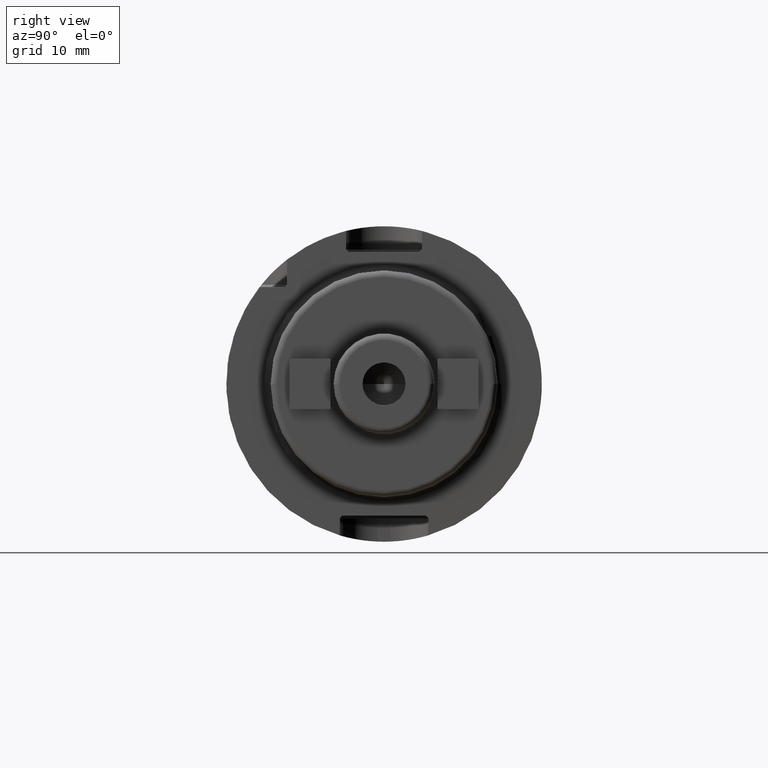
[diagram: clean part render]
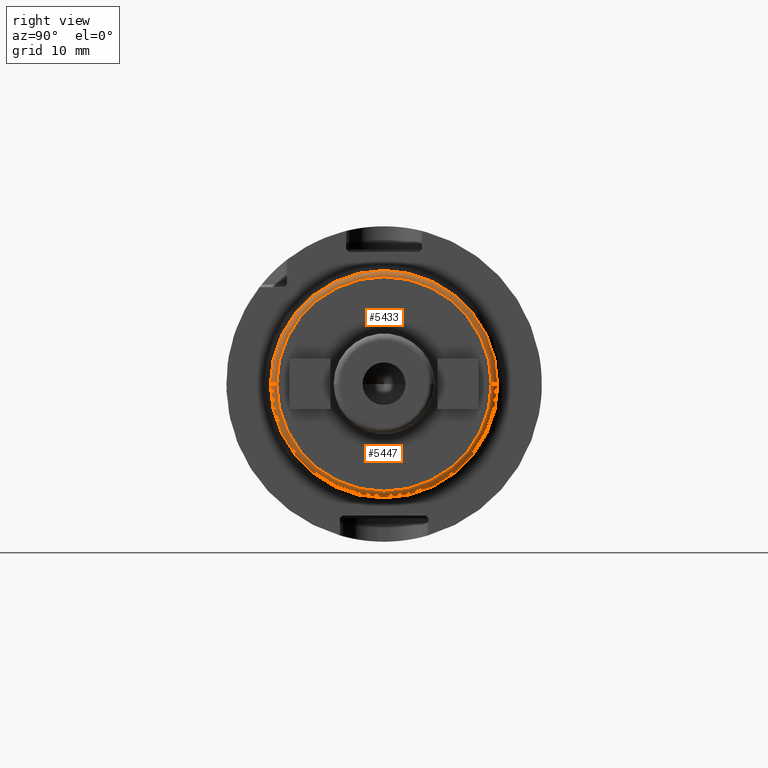
[diagram: same view with one multi-face feature highlighted, each face labeled with its STEP entity id]
A machine part, right view. The highlighted faces form ONE feature: a constant-radius fillet chain: 2 tangent blend faces with common blend radius 1 mm. The faces share edges in the B-rep.
Their STEP definitions:
[1] entity #5447 (Torus):
#1912=CARTESIAN_POINT('',(4.9E1,-1.7E1,-9.024017644244E-12));
#1913=DIRECTION('',(0.E0,-5.308236489254E-13,1.E0));
#1914=DIRECTION('',(0.E0,-1.E0,-5.308236489254E-13));
#1915=AXIS2_PLACEMENT_3D('',#1912,#1913,#1914);
#1917=CARTESIAN_POINT('',(4.9E1,1.7E1,9.023740088487E-12));
#1918=DIRECTION('',(0.E0,5.308080364141E-13,-1.E0));
#1919=DIRECTION('',(0.E0,1.E0,5.308080364141E-13));
#1920=AXIS2_PLACEMENT_3D('',#1917,#1918,#1919);
#1922=CARTESIAN_POINT('',(4.9E1,0.E0,0.E0));
#1923=DIRECTION('',(-1.E0,0.E0,0.E0));
#1924=DIRECTION('',(0.E0,1.E0,0.E0));
#1925=AXIS2_PLACEMENT_3D('',#1922,#1923,#1924);
#1950=CARTESIAN_POINT('',(5.E1,0.E0,0.E0));
#1951=DIRECTION('',(-1.E0,0.E0,0.E0));
#1952=DIRECTION('',(0.E0,1.E0,0.E0));
#1953=AXIS2_PLACEMENT_3D('',#1950,#1951,#1952);
#3356=CARTESIAN_POINT('',(4.9E1,1.8E1,0.E0));
#3357=CARTESIAN_POINT('',(4.9E1,-1.8E1,0.E0));
#3358=VERTEX_POINT('',#3356);
#3359=VERTEX_POINT('',#3357);
#3360=CARTESIAN_POINT('',(5.E1,1.7E1,0.E0));
#3361=CARTESIAN_POINT('',(5.E1,-1.7E1,0.E0));
#3362=VERTEX_POINT('',#3360);
#3363=VERTEX_POINT('',#3361);
#5434=CARTESIAN_POINT('',(4.9E1,0.E0,0.E0));
#5435=DIRECTION('',(1.E0,0.E0,0.E0));
#5436=DIRECTION('',(0.E0,9.999915662874E-1,4.106988454241E-3));
#5437=AXIS2_PLACEMENT_3D('',#5434,#5435,#5436);
#5438=TOROIDAL_SURFACE('',#5437,1.7E1,1.E0);
#5440=ORIENTED_EDGE('',*,*,#5439,.T.);
#5441=ORIENTED_EDGE('',*,*,#5429,.T.);
#5443=ORIENTED_EDGE('',*,*,#5442,.F.);
#5444=ORIENTED_EDGE('',*,*,#5425,.F.);
#5445=EDGE_LOOP('',(#5440,#5441,#5443,#5444));
#5446=FACE_OUTER_BOUND('',#5445,.F.);
#5447=ADVANCED_FACE('',(#5446),#5438,.T.);
#1916=CIRCLE('',#1915,1.E0);
#1921=CIRCLE('',#1920,1.E0);
#1926=CIRCLE('',#1925,1.8E1);
#1954=CIRCLE('',#1953,1.7E1);
#5425=EDGE_CURVE('',#3358,#3362,#1921,.T.);
#5429=EDGE_CURVE('',#3359,#3363,#1916,.T.);
#5439=EDGE_CURVE('',#3358,#3359,#1926,.T.);
#5442=EDGE_CURVE('',#3362,#3363,#1954,.T.);
[2] entity #5433 (Torus):
#1902=CARTESIAN_POINT('',(4.9E1,0.E0,0.E0));
#1903=DIRECTION('',(-1.E0,0.E0,0.E0));
#1904=DIRECTION('',(0.E0,-1.E0,0.E0));
#1905=AXIS2_PLACEMENT_3D('',#1902,#1903,#1904);
#1912=CARTESIAN_POINT('',(4.9E1,-1.7E1,-9.024017644244E-12));
#1913=DIRECTION('',(0.E0,-5.308236489254E-13,1.E0));
#1914=DIRECTION('',(0.E0,-1.E0,-5.308236489254E-13));
#1915=AXIS2_PLACEMENT_3D('',#1912,#1913,#1914);
#1917=CARTESIAN_POINT('',(4.9E1,1.7E1,9.023740088487E-12));
#1918=DIRECTION('',(0.E0,5.308080364141E-13,-1.E0));
#1919=DIRECTION('',(0.E0,1.E0,5.308080364141E-13));
#1920=AXIS2_PLACEMENT_3D('',#1917,#1918,#1919);
#1955=CARTESIAN_POINT('',(5.E1,0.E0,0.E0));
#1956=DIRECTION('',(-1.E0,0.E0,0.E0));
#1957=DIRECTION('',(0.E0,-1.E0,0.E0));
#1958=AXIS2_PLACEMENT_3D('',#1955,#1956,#1957);
#3356=CARTESIAN_POINT('',(4.9E1,1.8E1,0.E0));
#3357=CARTESIAN_POINT('',(4.9E1,-1.8E1,0.E0));
#3358=VERTEX_POINT('',#3356);
#3359=VERTEX_POINT('',#3357);
#3360=CARTESIAN_POINT('',(5.E1,1.7E1,0.E0));
#3361=CARTESIAN_POINT('',(5.E1,-1.7E1,0.E0));
#3362=VERTEX_POINT('',#3360);
#3363=VERTEX_POINT('',#3361);
#5419=CARTESIAN_POINT('',(4.9E1,0.E0,0.E0));
#5420=DIRECTION('',(1.E0,0.E0,0.E0));
#5421=DIRECTION('',(0.E0,-9.999915662874E-1,-4.106988454241E-3));
#5422=AXIS2_PLACEMENT_3D('',#5419,#5420,#5421);
#5423=TOROIDAL_SURFACE('',#5422,1.7E1,1.E0);
#5424=ORIENTED_EDGE('',*,*,#5409,.T.);
#5426=ORIENTED_EDGE('',*,*,#5425,.T.);
#5428=ORIENTED_EDGE('',*,*,#5427,.F.);
#5430=ORIENTED_EDGE('',*,*,#5429,.F.);
#5431=EDGE_LOOP('',(#5424,#5426,#5428,#5430));
#5432=FACE_OUTER_BOUND('',#5431,.F.);
#5433=ADVANCED_FACE('',(#5432),#5423,.T.);
#1906=CIRCLE('',#1905,1.8E1);
#1916=CIRCLE('',#1915,1.E0);
#1921=CIRCLE('',#1920,1.E0);
#1959=CIRCLE('',#1958,1.7E1);
#5409=EDGE_CURVE('',#3359,#3358,#1906,.T.);
#5425=EDGE_CURVE('',#3358,#3362,#1921,.T.);
#5427=EDGE_CURVE('',#3363,#3362,#1959,.T.);
#5429=EDGE_CURVE('',#3359,#3363,#1916,.T.);